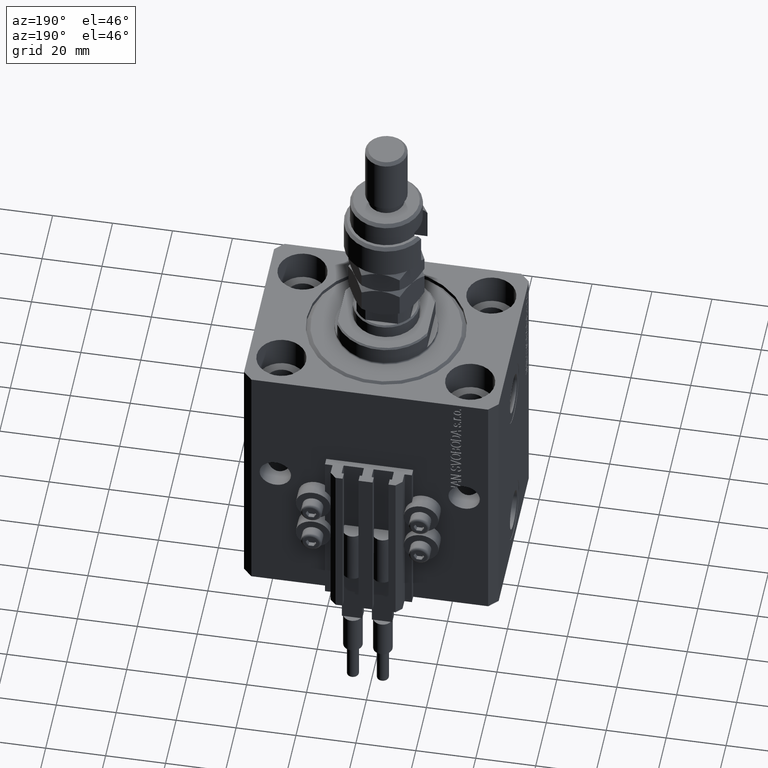
[diagram: clean part render]
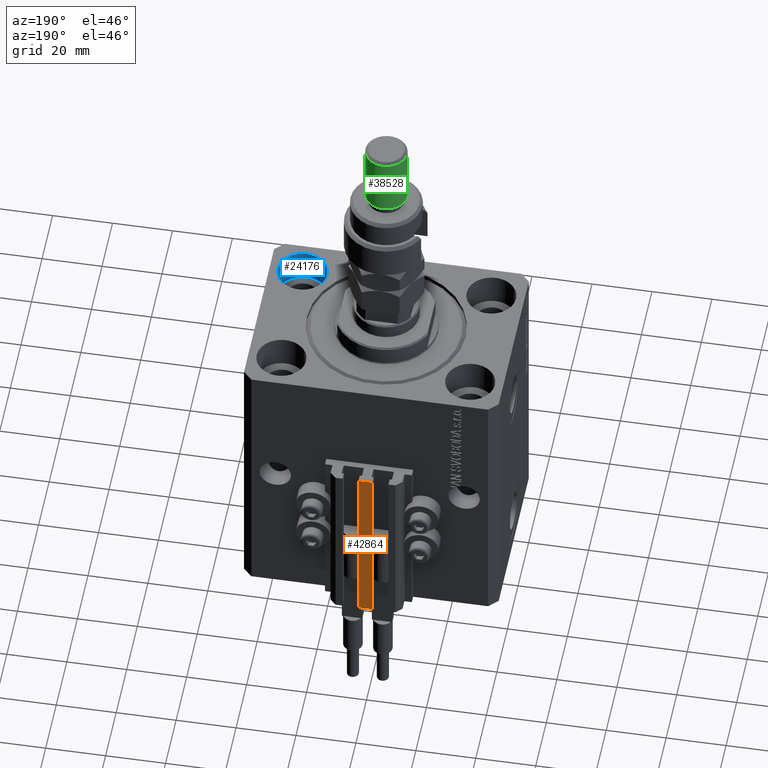
[diagram: same view with three faces highlighted in distinct colors, each labeled with its STEP entity id]
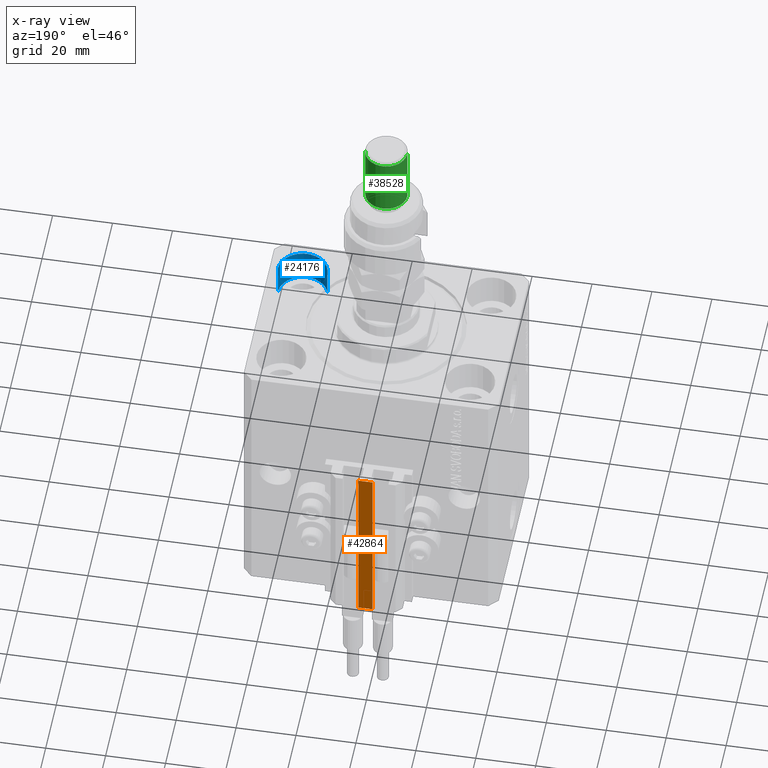
[diagram: x-ray of the same camera — body ghosted, the three highlighted faces saturated]
A machine part, auxiliary view with three faces highlighted in distinct colors.
The next image is the same camera in x-ray (body ghosted, the three faces saturated) — at least one of them is partly hidden behind the body in this view.
Their STEP definitions:

[orange] entity #42864 — the highlighted planar face has unit normal (0, -1, 0).
#143 = ORIENTED_EDGE ( 'NONE', *, *, #37088, .T. ) ;
#383 = DIRECTION ( 'NONE',  ( 0.000000000000000000, 0.000000000000000000, 1.000000000000000000 ) ) ;
#1160 = CARTESIAN_POINT ( 'NONE',  ( 2.349999999999999645, 39.50000000000000711, -93.00000000000000000 ) ) ;
#4089 = CARTESIAN_POINT ( 'NONE',  ( 2.349999999999999645, 39.50000000000000711, -93.00000000000000000 ) ) ;
#5268 = DIRECTION ( 'NONE',  ( 0.000000000000000000, -0.000000000000000000, -1.000000000000000000 ) ) ;
#6467 = EDGE_CURVE ( 'NONE', #16027, #19634, #28112, .T. ) ;
#7882 = VECTOR ( 'NONE', #12169, 1000.000000000000000 ) ;
#9412 = FACE_OUTER_BOUND ( 'NONE', #19423, .T. ) ;
#11917 = CARTESIAN_POINT ( 'NONE',  ( -2.350000000000003642, 39.50000000000000711, -93.00000000000000000 ) ) ;
#12169 = DIRECTION ( 'NONE',  ( 1.000000000000000000, 0.000000000000000000, 0.000000000000000000 ) ) ;
#13207 = VECTOR ( 'NONE', #20601, 1000.000000000000000 ) ;
#16027 = VERTEX_POINT ( 'NONE', #4089 ) ;
#17489 = DIRECTION ( 'NONE',  ( 1.000000000000000000, 0.000000000000000000, 0.000000000000000000 ) ) ;
#19423 = EDGE_LOOP ( 'NONE', ( #20524, #31113, #27883, #143 ) ) ;
#19634 = VERTEX_POINT ( 'NONE', #41014 ) ;
#20081 = CARTESIAN_POINT ( 'NONE',  ( -2.350000000000003642, 39.50000000000000711, -93.00000000000000000 ) ) ;
#20524 = ORIENTED_EDGE ( 'NONE', *, *, #49613, .T. ) ;
#20601 = DIRECTION ( 'NONE',  ( 0.000000000000000000, 0.000000000000000000, 1.000000000000000000 ) ) ;
#21367 = EDGE_CURVE ( 'NONE', #21772, #16027, #44491, .T. ) ;
#21381 = CARTESIAN_POINT ( 'NONE',  ( -2.350000000000003642, 39.50000000000000711, -33.00000000000000000 ) ) ;
#21772 = VERTEX_POINT ( 'NONE', #34072 ) ;
#23455 = VECTOR ( 'NONE', #383, 1000.000000000000000 ) ;
#23965 = LINE ( 'NONE', #20081, #23455 ) ;
#24737 = LINE ( 'NONE', #21381, #29581 ) ;
#25202 = DIRECTION ( 'NONE',  ( 0.000000000000000000, -1.000000000000000000, 0.000000000000000000 ) ) ;
#25709 = CARTESIAN_POINT ( 'NONE',  ( -2.350000000000003642, 39.50000000000000711, -33.00000000000000000 ) ) ;
#27883 = ORIENTED_EDGE ( 'NONE', *, *, #21367, .F. ) ;
#28112 = LINE ( 'NONE', #1160, #13207 ) ;
#29581 = VECTOR ( 'NONE', #17489, 1000.000000000000000 ) ;
#31113 = ORIENTED_EDGE ( 'NONE', *, *, #6467, .F. ) ;
#32709 = CARTESIAN_POINT ( 'NONE',  ( -2.350000000000003642, 39.50000000000000711, -93.00000000000000000 ) ) ;
#34072 = CARTESIAN_POINT ( 'NONE',  ( -2.350000000000003642, 39.50000000000000711, -93.00000000000000000 ) ) ;
#36030 = AXIS2_PLACEMENT_3D ( 'NONE', #32709, #25202, #5268 ) ;
#37088 = EDGE_CURVE ( 'NONE', #21772, #44543, #23965, .T. ) ;
#41014 = CARTESIAN_POINT ( 'NONE',  ( 2.349999999999999645, 39.50000000000000711, -33.00000000000000000 ) ) ;
#42864 = ADVANCED_FACE ( 'NONE', ( #9412 ), #44333, .F. ) ;
#44333 = PLANE ( 'NONE',  #36030 ) ;
#44491 = LINE ( 'NONE', #11917, #7882 ) ;
#44543 = VERTEX_POINT ( 'NONE', #25709 ) ;
#49613 = EDGE_CURVE ( 'NONE', #44543, #19634, #24737, .T. ) ;

[blue] entity #24176 — the highlighted cylindrical surface (edge-blend (fillet) strip) has radius 8.25 mm, axis along (0, 0, 1).
#786 = ORIENTED_EDGE ( 'NONE', *, *, #49827, .F. ) ;
#7003 = AXIS2_PLACEMENT_3D ( 'NONE', #15245, #19640, #31035 ) ;
#9648 = ORIENTED_EDGE ( 'NONE', *, *, #39059, .T. ) ;
#9768 = ORIENTED_EDGE ( 'NONE', *, *, #36091, .T. ) ;
#11716 = CARTESIAN_POINT ( 'NONE',  ( 23.25000000000000355, -20.00000000000000000, -11.00000000000000000 ) ) ;
#12005 = LINE ( 'NONE', #23167, #44431 ) ;
#12500 = VERTEX_POINT ( 'NONE', #36818 ) ;
#14682 = CARTESIAN_POINT ( 'NONE',  ( 39.74999999999999289, -20.00000000000000000, -11.00000000000000000 ) ) ;
#15245 = CARTESIAN_POINT ( 'NONE',  ( 31.50000000000000000, -20.00000000000000000, -11.00000000000000000 ) ) ;
#15528 = VERTEX_POINT ( 'NONE', #29044 ) ;
#16044 = EDGE_CURVE ( 'NONE', #12500, #47281, #23523, .T. ) ;
#16788 = CARTESIAN_POINT ( 'NONE',  ( 31.50000000000000000, -20.00000000000000000, -11.00000000000000000 ) ) ;
#18813 = DIRECTION ( 'NONE',  ( 1.000000000000000000, 0.000000000000000000, 0.000000000000000000 ) ) ;
#19640 = DIRECTION ( 'NONE',  ( 0.000000000000000000, 0.000000000000000000, 1.000000000000000000 ) ) ;
#21044 = VERTEX_POINT ( 'NONE', #44043 ) ;
#23133 = LINE ( 'NONE', #11716, #41706 ) ;
#23167 = CARTESIAN_POINT ( 'NONE',  ( 39.74999999999999289, -20.00000000000000000, -11.00000000000000000 ) ) ;
#23523 = CIRCLE ( 'NONE', #7003, 8.249999999999992895 ) ;
#24176 = ADVANCED_FACE ( 'NONE', ( #48098 ), #44994, .F. ) ;
#24356 = EDGE_LOOP ( 'NONE', ( #35118, #9648, #9768, #786 ) ) ;
#27799 = DIRECTION ( 'NONE',  ( -0.000000000000000000, -0.000000000000000000, 1.000000000000000000 ) ) ;
#29044 = CARTESIAN_POINT ( 'NONE',  ( 39.74999999999999289, -20.00000000000000000, 0.000000000000000000 ) ) ;
#29174 = AXIS2_PLACEMENT_3D ( 'NONE', #41592, #37446, #18813 ) ;
#31035 = DIRECTION ( 'NONE',  ( 1.000000000000000000, 0.000000000000000000, 0.000000000000000000 ) ) ;
#32835 = DIRECTION ( 'NONE',  ( -0.000000000000000000, -0.000000000000000000, 1.000000000000000000 ) ) ;
#33358 = DIRECTION ( 'NONE',  ( 1.000000000000000000, 0.000000000000000000, 0.000000000000000000 ) ) ;
#35118 = ORIENTED_EDGE ( 'NONE', *, *, #16044, .F. ) ;
#36091 = EDGE_CURVE ( 'NONE', #21044, #15528, #44858, .T. ) ;
#36818 = CARTESIAN_POINT ( 'NONE',  ( 23.25000000000000355, -20.00000000000000000, -11.00000000000000000 ) ) ;
#37446 = DIRECTION ( 'NONE',  ( 0.000000000000000000, 0.000000000000000000, 1.000000000000000000 ) ) ;
#38906 = DIRECTION ( 'NONE',  ( -0.000000000000000000, -0.000000000000000000, 1.000000000000000000 ) ) ;
#39059 = EDGE_CURVE ( 'NONE', #12500, #21044, #23133, .T. ) ;
#41592 = CARTESIAN_POINT ( 'NONE',  ( 31.50000000000000000, -20.00000000000000000, 0.000000000000000000 ) ) ;
#41706 = VECTOR ( 'NONE', #38906, 1000.000000000000000 ) ;
#42683 = AXIS2_PLACEMENT_3D ( 'NONE', #16788, #32835, #33358 ) ;
#44043 = CARTESIAN_POINT ( 'NONE',  ( 23.25000000000000355, -20.00000000000000000, 0.000000000000000000 ) ) ;
#44431 = VECTOR ( 'NONE', #27799, 1000.000000000000000 ) ;
#44858 = CIRCLE ( 'NONE', #29174, 8.249999999999992895 ) ;
#44994 = CYLINDRICAL_SURFACE ( 'NONE', #42683, 8.249999999999992895 ) ;
#47281 = VERTEX_POINT ( 'NONE', #14682 ) ;
#48098 = FACE_OUTER_BOUND ( 'NONE', #24356, .T. ) ;
#49827 = EDGE_CURVE ( 'NONE', #47281, #15528, #12005, .T. ) ;

[green] entity #38528 — the highlighted cylindrical surface (edge-blend (fillet) strip) has radius 7 mm, axis along (-0, -0, -1).
#16 = LINE ( 'NONE', #47656, #9292 ) ;
#878 = EDGE_CURVE ( 'NONE', #8451, #32898, #16, .T. ) ;
#2334 = ORIENTED_EDGE ( 'NONE', *, *, #20831, .T. ) ;
#3739 = AXIS2_PLACEMENT_3D ( 'NONE', #49814, #22380, #45404 ) ;
#4547 = CIRCLE ( 'NONE', #3739, 7.000000000000000000 ) ;
#5256 = CARTESIAN_POINT ( 'NONE',  ( -7.000000000000000000, 0.000000000000000000, 24.99999999999998934 ) ) ;
#6185 = CARTESIAN_POINT ( 'NONE',  ( -7.000000000000000000, 0.000000000000000000, 44.99999999999999289 ) ) ;
#6669 = VERTEX_POINT ( 'NONE', #5256 ) ;
#8016 = DIRECTION ( 'NONE',  ( 1.000000000000000000, 0.000000000000000000, 0.000000000000000000 ) ) ;
#8279 = EDGE_CURVE ( 'NONE', #43435, #8451, #20738, .T. ) ;
#8451 = VERTEX_POINT ( 'NONE', #33871 ) ;
#9292 = VECTOR ( 'NONE', #32368, 1000.000000000000000 ) ;
#11540 = EDGE_CURVE ( 'NONE', #43435, #6669, #15815, .T. ) ;
#15815 = LINE ( 'NONE', #27713, #30761 ) ;
#17000 = FACE_OUTER_BOUND ( 'NONE', #20153, .T. ) ;
#20123 = CARTESIAN_POINT ( 'NONE',  ( 0.000000000000000000, 0.000000000000000000, 46.00000000000000000 ) ) ;
#20153 = EDGE_LOOP ( 'NONE', ( #49755, #46411, #2334, #20893 ) ) ;
#20429 = DIRECTION ( 'NONE',  ( 0.000000000000000000, 0.000000000000000000, -1.000000000000000000 ) ) ;
#20738 = CIRCLE ( 'NONE', #32303, 7.000000000000000000 ) ;
#20831 = EDGE_CURVE ( 'NONE', #32898, #6669, #4547, .T. ) ;
#20893 = ORIENTED_EDGE ( 'NONE', *, *, #11540, .F. ) ;
#20939 = CARTESIAN_POINT ( 'NONE',  ( 0.000000000000000000, 0.000000000000000000, 44.99999999999999289 ) ) ;
#22380 = DIRECTION ( 'NONE',  ( -0.000000000000000000, -0.000000000000000000, 1.000000000000000000 ) ) ;
#22648 = AXIS2_PLACEMENT_3D ( 'NONE', #20123, #35894, #40548 ) ;
#27713 = CARTESIAN_POINT ( 'NONE',  ( -7.000000000000000000, 0.000000000000000000, 46.00000000000000000 ) ) ;
#30761 = VECTOR ( 'NONE', #43489, 1000.000000000000000 ) ;
#30880 = CARTESIAN_POINT ( 'NONE',  ( 7.000000000000000000, 8.572527594031473190E-16, 24.99999999999998934 ) ) ;
#32303 = AXIS2_PLACEMENT_3D ( 'NONE', #20939, #20429, #8016 ) ;
#32368 = DIRECTION ( 'NONE',  ( -0.000000000000000000, -0.000000000000000000, -1.000000000000000000 ) ) ;
#32898 = VERTEX_POINT ( 'NONE', #30880 ) ;
#33871 = CARTESIAN_POINT ( 'NONE',  ( 7.000000000000000000, 8.572527594031473190E-16, 44.99999999999999289 ) ) ;
#35894 = DIRECTION ( 'NONE',  ( -0.000000000000000000, -0.000000000000000000, -1.000000000000000000 ) ) ;
#38528 = ADVANCED_FACE ( 'NONE', ( #17000 ), #44675, .T. ) ;
#40548 = DIRECTION ( 'NONE',  ( -1.000000000000000000, 0.000000000000000000, 0.000000000000000000 ) ) ;
#43435 = VERTEX_POINT ( 'NONE', #6185 ) ;
#43489 = DIRECTION ( 'NONE',  ( -0.000000000000000000, -0.000000000000000000, -1.000000000000000000 ) ) ;
#44675 = CYLINDRICAL_SURFACE ( 'NONE', #22648, 7.000000000000000000 ) ;
#45404 = DIRECTION ( 'NONE',  ( 1.000000000000000000, 0.000000000000000000, 0.000000000000000000 ) ) ;
#46411 = ORIENTED_EDGE ( 'NONE', *, *, #878, .T. ) ;
#47656 = CARTESIAN_POINT ( 'NONE',  ( 7.000000000000000000, 8.572527594031473190E-16, 46.00000000000000000 ) ) ;
#49755 = ORIENTED_EDGE ( 'NONE', *, *, #8279, .T. ) ;
#49814 = CARTESIAN_POINT ( 'NONE',  ( 0.000000000000000000, 0.000000000000000000, 24.99999999999998934 ) ) ;